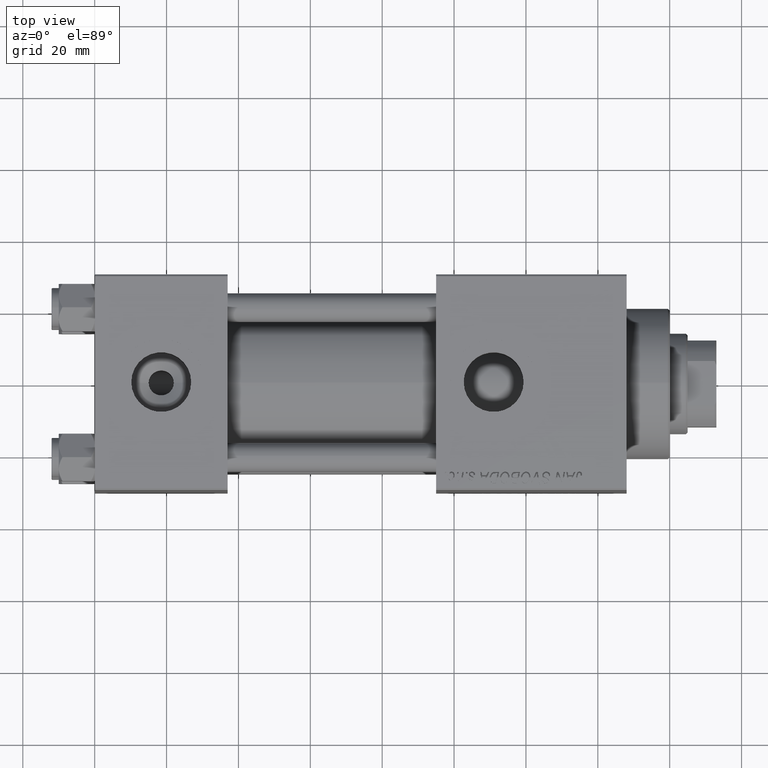
[diagram: clean part render]
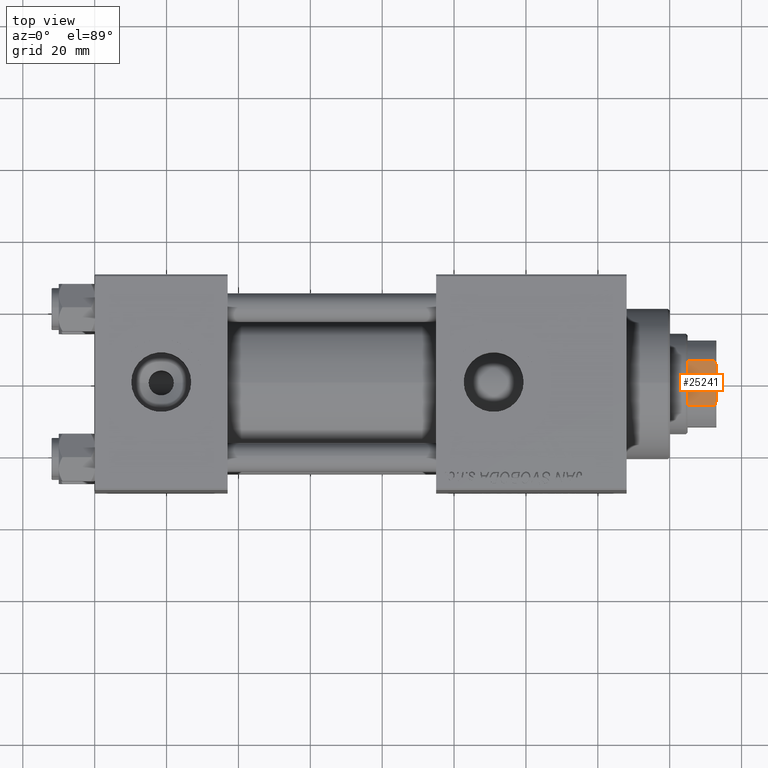
[diagram: same view with one face highlighted and labeled with its STEP entity id]
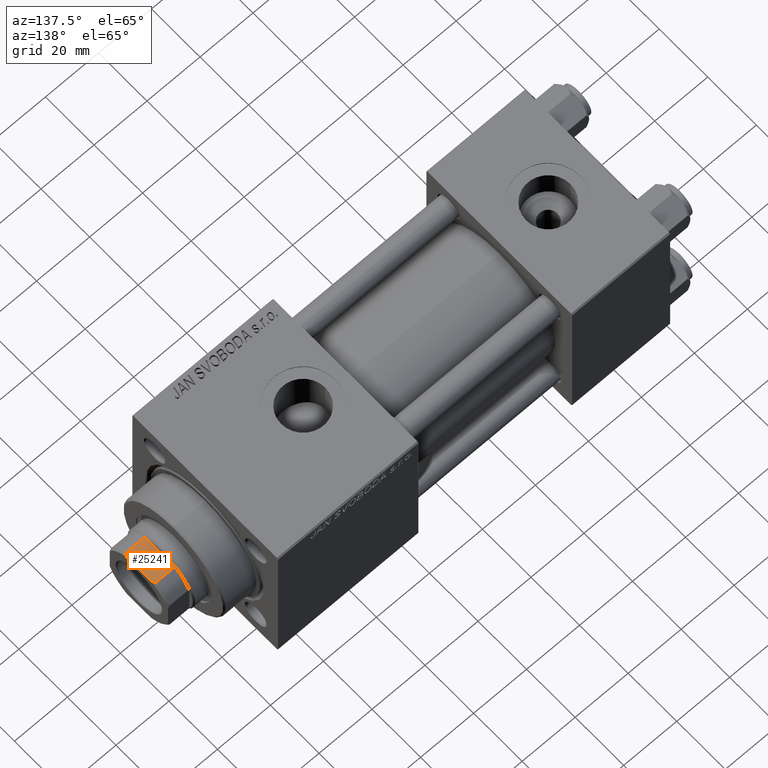
[diagram: same view with one face highlighted and labeled with its STEP entity id]
A machine part, top view. The second image highlights one B-rep face of the part: STEP entity #25241.
A second angle (auxiliary view) of the same face is appended — the face is thin or edge-on in the first view.
In plain terms, the highlighted planar face has unit normal (0, 0, -1).
Its self-contained STEP definition (entity closure, byte-faithful):
#2231 = DIRECTION ( 'NONE',  ( 1.000000000000000000, 0.000000000000000000, 0.000000000000000000 ) ) ;
#4515 = VERTEX_POINT ( 'NONE', #32502 ) ;
#6967 = EDGE_LOOP ( 'NONE', ( #42101, #43708, #19512, #26285, #30716, #32950 ) ) ;
#7431 = DIRECTION ( 'NONE',  ( 0.000000000000000000, -0.000000000000000000, 1.000000000000000000 ) ) ;
#9609 = EDGE_CURVE ( 'NONE', #32644, #10009, #34367, .T. ) ;
#10009 = VERTEX_POINT ( 'NONE', #38839 ) ;
#10722 = CARTESIAN_POINT ( 'NONE',  ( 5.000000000000053291, -12.00000000000000355, 136.0000000000000000 ) ) ;
#11175 = CARTESIAN_POINT ( 'NONE',  ( -5.794808544282252782, -12.00000000000000355, 135.6785991435214385 ) ) ;
#11496 = CARTESIAN_POINT ( 'NONE',  ( -11.99999999999999822, -12.00000000000000355, 128.0000000000000000 ) ) ;
#13927 = CARTESIAN_POINT ( 'NONE',  ( -11.99999999999999822, -12.00000000000000355, 136.0000000000000000 ) ) ;
#14313 = VERTEX_POINT ( 'NONE', #27002 ) ;
#14494 = CARTESIAN_POINT ( 'NONE',  ( -5.000000000000031086, -12.00000000000000355, 136.0000000000000000 ) ) ;
#14557 = PLANE ( 'NONE',  #40989 ) ;
#14731 = DIRECTION ( 'NONE',  ( -0.000000000000000000, -0.000000000000000000, 1.000000000000000000 ) ) ;
#15035 = CARTESIAN_POINT ( 'NONE',  ( 6.184658438426496652, -11.99999999999999645, 135.5000000000000284 ) ) ;
#19512 = ORIENTED_EDGE ( 'NONE', *, *, #30148, .F. ) ;
#20291 = EDGE_CURVE ( 'NONE', #32644, #4515, #22599, .T. ) ;
#20472 = CARTESIAN_POINT ( 'NONE',  ( 6.184658438426496652, -11.99999999999999645, -0.001000000000001000089 ) ) ;
#20931 = CARTESIAN_POINT ( 'NONE',  ( 6.184658438426496652, -11.99999999999999645, 135.5000000000000284 ) ) ;
#22484 = VECTOR ( 'NONE', #2231, 1000.000000000000000 ) ;
#22599 = LINE ( 'NONE', #50001, #32725 ) ;
#24520 = LINE ( 'NONE', #20472, #32870 ) ;
#24629 = EDGE_CURVE ( 'NONE', #10009, #49972, #24520, .T. ) ;
#25241 = ADVANCED_FACE ( 'NONE', ( #46274 ), #14557, .F. ) ;
#26285 = ORIENTED_EDGE ( 'NONE', *, *, #40513, .T. ) ;
#27002 = CARTESIAN_POINT ( 'NONE',  ( 5.000000000000053291, -12.00000000000000355, 136.0000000000000000 ) ) ;
#27372 = B_SPLINE_CURVE_WITH_KNOTS ( 'NONE', 3,
 ( #15035, #37140, #49066, #10722 ),
 .UNSPECIFIED., .F., .F.,
 ( 4, 4 ),
 ( 0.000000000000000000, 0.001285852097146072308 ),
 .UNSPECIFIED. ) ;
#28085 = DIRECTION ( 'NONE',  ( -0.000000000000000000, -0.000000000000000000, 1.000000000000000000 ) ) ;
#30083 = VECTOR ( 'NONE', #34118, 1000.000000000000000 ) ;
#30148 = EDGE_CURVE ( 'NONE', #37866, #14313, #48703, .T. ) ;
#30280 = EDGE_CURVE ( 'NONE', #49972, #14313, #27372, .T. ) ;
#30716 = ORIENTED_EDGE ( 'NONE', *, *, #20291, .F. ) ;
#32502 = CARTESIAN_POINT ( 'NONE',  ( -6.184658438426496652, -11.99999999999999645, 135.5000000000000284 ) ) ;
#32644 = VERTEX_POINT ( 'NONE', #37280 ) ;
#32725 = VECTOR ( 'NONE', #14731, 1000.000000000000000 ) ;
#32870 = VECTOR ( 'NONE', #28085, 1000.000000000000000 ) ;
#32950 = ORIENTED_EDGE ( 'NONE', *, *, #9609, .T. ) ;
#33243 = B_SPLINE_CURVE_WITH_KNOTS ( 'NONE', 3,
 ( #14494, #34302, #11175, #37598 ),
 .UNSPECIFIED., .F., .F.,
 ( 4, 4 ),
 ( 0.000000000000000000, 0.001285852097146092258 ),
 .UNSPECIFIED. ) ;
#34118 = DIRECTION ( 'NONE',  ( 1.000000000000000000, 0.000000000000000000, 0.000000000000000000 ) ) ;
#34302 = CARTESIAN_POINT ( 'NONE',  ( -5.400255697127810173, -12.00000000000000355, 135.8460555011047006 ) ) ;
#34367 = LINE ( 'NONE', #11496, #30083 ) ;
#37140 = CARTESIAN_POINT ( 'NONE',  ( 5.794808544282259888, -11.99999999999999645, 135.6785991435214385 ) ) ;
#37280 = CARTESIAN_POINT ( 'NONE',  ( -6.184658438426496652, -11.99999999999999645, 128.0000000000000853 ) ) ;
#37598 = CARTESIAN_POINT ( 'NONE',  ( -6.184658438426496652, -11.99999999999999645, 135.5000000000000284 ) ) ;
#37866 = VERTEX_POINT ( 'NONE', #49124 ) ;
#38839 = CARTESIAN_POINT ( 'NONE',  ( 6.184658438426496652, -11.99999999999999645, 128.0000000000000853 ) ) ;
#40513 = EDGE_CURVE ( 'NONE', #37866, #4515, #33243, .T. ) ;
#40989 = AXIS2_PLACEMENT_3D ( 'NONE', #46020, #42215, #7431 ) ;
#42101 = ORIENTED_EDGE ( 'NONE', *, *, #24629, .T. ) ;
#42215 = DIRECTION ( 'NONE',  ( 0.000000000000000000, 1.000000000000000000, 0.000000000000000000 ) ) ;
#43708 = ORIENTED_EDGE ( 'NONE', *, *, #30280, .T. ) ;
#46020 = CARTESIAN_POINT ( 'NONE',  ( -11.99999999999999822, -12.00000000000000355, 136.0000000000000000 ) ) ;
#46274 = FACE_OUTER_BOUND ( 'NONE', #6967, .T. ) ;
#48703 = LINE ( 'NONE', #13927, #22484 ) ;
#49066 = CARTESIAN_POINT ( 'NONE',  ( 5.400255697127826160, -12.00000000000000355, 135.8460555011047006 ) ) ;
#49124 = CARTESIAN_POINT ( 'NONE',  ( -5.000000000000031086, -12.00000000000000355, 136.0000000000000000 ) ) ;
#49972 = VERTEX_POINT ( 'NONE', #20931 ) ;
#50001 = CARTESIAN_POINT ( 'NONE',  ( -6.184658438426496652, -11.99999999999999645, -0.001000000000001000089 ) ) ;